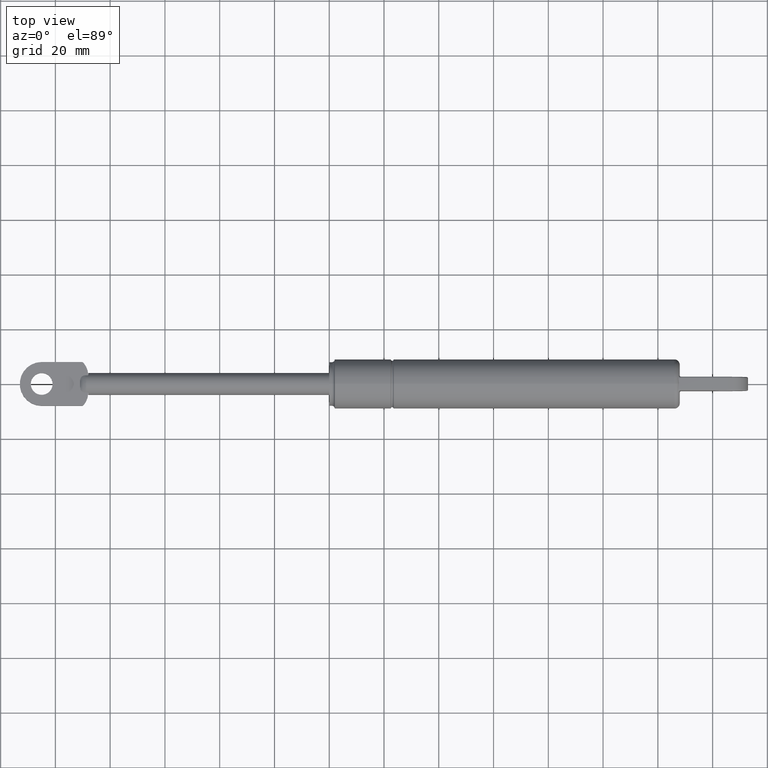
[diagram: clean part render]
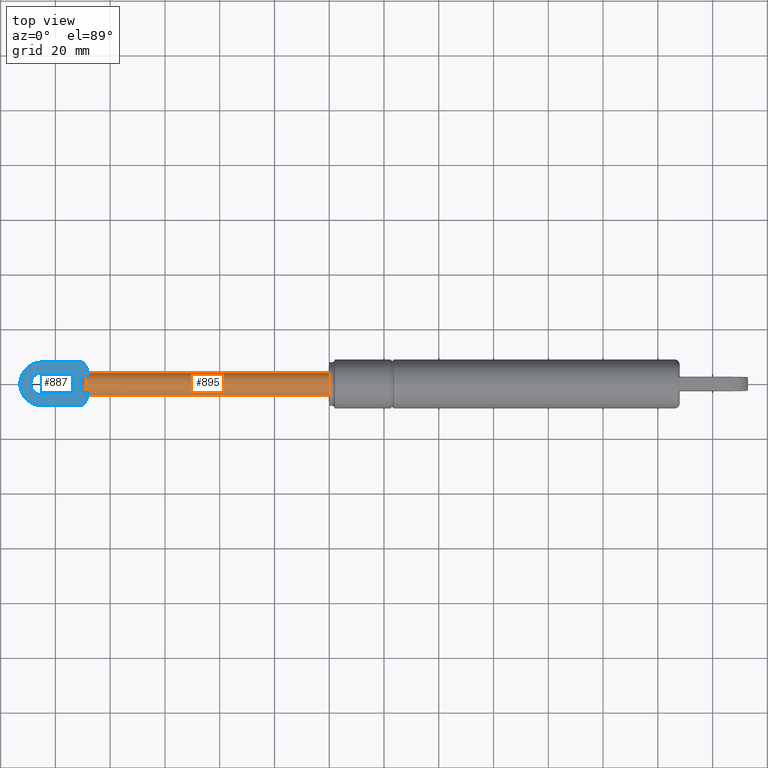
[diagram: same view with the hole feature highlighted: cylindrical wall and planar end face, labeled with their STEP entity ids]
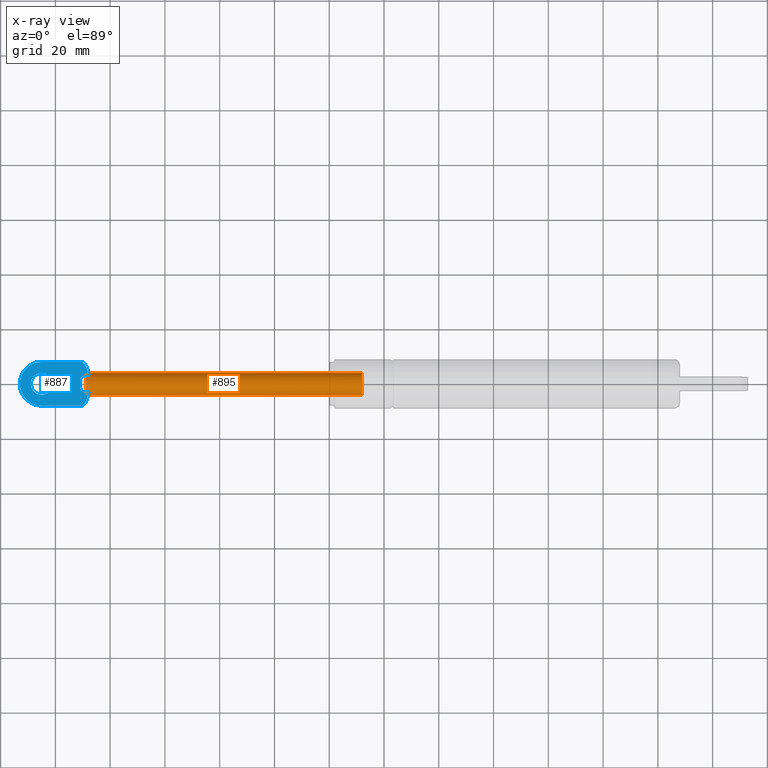
[diagram: x-ray of the same camera — body ghosted, the hole faces saturated]
A machine part, top view. The highlighted faces form one hole feature of diameter 8 mm: the cylindrical wall (entity #895, orange) and its adjacent planar end face (entity #887, blue) — they share a circular edge in the B-rep.
The next image is the same camera in x-ray (body ghosted, the hole faces saturated) — the bore reads through the body.
Wall:
#81=B_SPLINE_CURVE_WITH_KNOTS('',3,(#1987,#1988,#1989,#1990,#1991,#1992,
#1993,#1994,#1995),.UNSPECIFIED.,.F.,.F.,(4,1,1,1,1,1,4),(-0.139475648063101,
-0.104796829724592,-0.0522384912410686,0.000319847242455151,0.0528781857259789,
0.105436524209503,0.139788063217883),.UNSPECIFIED.);
#82=B_SPLINE_CURVE_WITH_KNOTS('',3,(#2101,#2102,#2103,#2104,#2105,#2106,
#2107,#2108,#2109),.UNSPECIFIED.,.F.,.F.,(4,1,1,1,1,1,4),(-0.139475648063101,
-0.104796813823138,-0.0522384721593241,0.000319869504489478,0.052878211168303,
0.105436552832117,0.139788063217883),.UNSPECIFIED.);
#102=LINE('',#1725,#135);
#104=LINE('',#1788,#137);
#112=LINE('',#1815,#145);
#114=LINE('',#1878,#147);
#135=VECTOR('',#1191,1.0484381254694);
#137=VECTOR('',#1193,1.04843812546748);
#145=VECTOR('',#1225,1.04843812546939);
#147=VECTOR('',#1227,1.04843812546748);
#190=CYLINDRICAL_SURFACE('',#1003,4.00000000000002);
#215=FACE_BOUND('',#358,.T.);
#274=FACE_OUTER_BOUND('',#357,.T.);
#357=EDGE_LOOP('',(#821,#822,#823,#824,#825,#826,#827,#828));
#358=EDGE_LOOP('',(#829));
#404=CIRCLE('',#986,4.00000000000003);
#406=CIRCLE('',#991,4.00000000000003);
#410=CIRCLE('',#997,4.);
#466=VERTEX_POINT('',#1708);
#467=VERTEX_POINT('',#1710);
#472=VERTEX_POINT('',#1722);
#473=VERTEX_POINT('',#1724);
#476=VERTEX_POINT('',#1761);
#482=VERTEX_POINT('',#1808);
#483=VERTEX_POINT('',#1814);
#486=VERTEX_POINT('',#1851);
#489=VERTEX_POINT('',#2113);
#575=EDGE_CURVE('',#472,#473,#102,.T.);
#579=EDGE_CURVE('',#476,#466,#104,.T.);
#586=EDGE_CURVE('',#466,#467,#404,.T.);
#591=EDGE_CURVE('',#482,#472,#406,.T.);
#592=EDGE_CURVE('',#467,#483,#112,.T.);
#596=EDGE_CURVE('',#486,#482,#114,.T.);
#599=EDGE_CURVE('',#473,#476,#81,.T.);
#600=EDGE_CURVE('',#483,#486,#82,.T.);
#602=EDGE_CURVE('',#489,#489,#410,.T.);
#821=ORIENTED_EDGE('',*,*,#599,.F.);
#822=ORIENTED_EDGE('',*,*,#575,.F.);
#823=ORIENTED_EDGE('',*,*,#591,.F.);
#824=ORIENTED_EDGE('',*,*,#596,.F.);
#825=ORIENTED_EDGE('',*,*,#600,.F.);
#826=ORIENTED_EDGE('',*,*,#592,.F.);
#827=ORIENTED_EDGE('',*,*,#586,.F.);
#828=ORIENTED_EDGE('',*,*,#579,.F.);
#829=ORIENTED_EDGE('',*,*,#602,.T.);
#895=ADVANCED_FACE('',(#274,#215),#190,.T.);
#986=AXIS2_PLACEMENT_3D('',#1802,#1208,#1209);
#991=AXIS2_PLACEMENT_3D('',#1812,#1221,#1222);
#997=AXIS2_PLACEMENT_3D('',#2114,#1236,#1237);
#1003=AXIS2_PLACEMENT_3D('',#2121,#1248,#1249);
#1191=DIRECTION('',(-1.,0.,0.));
#1193=DIRECTION('',(1.,0.,0.));
#1208=DIRECTION('center_axis',(-1.,0.,0.));
#1209=DIRECTION('ref_axis',(0.,0.,1.));
#1221=DIRECTION('center_axis',(-1.,0.,0.));
#1222=DIRECTION('ref_axis',(0.,0.,1.));
#1225=DIRECTION('',(-1.,0.,0.));
#1227=DIRECTION('',(1.,0.,0.));
#1236=DIRECTION('center_axis',(-1.,0.,0.));
#1237=DIRECTION('ref_axis',(0.,0.,1.));
#1248=DIRECTION('center_axis',(-1.,0.,0.));
#1249=DIRECTION('ref_axis',(0.,0.,1.));
#1708=CARTESIAN_POINT('',(0.,-2.5,3.12249899919922));
#1710=CARTESIAN_POINT('',(0.,2.5,3.12249899919922));
#1722=CARTESIAN_POINT('',(0.,-2.5,-3.12249899919922));
#1724=CARTESIAN_POINT('',(-1.0484381254694,-2.50000000005179,-3.12249899915775));
#1725=CARTESIAN_POINT('',(0.,-2.5,-3.12249899919924));
#1761=CARTESIAN_POINT('',(-1.04843812546748,-2.50000000005498,3.1224989991552));
#1788=CARTESIAN_POINT('',(0.,-2.5,3.12249899919924));
#1802=CARTESIAN_POINT('Origin',(0.,0.,0.));
#1808=CARTESIAN_POINT('',(0.,2.5,-3.12249899919922));
#1812=CARTESIAN_POINT('Origin',(0.,0.,0.));
#1814=CARTESIAN_POINT('',(-1.04843812546939,2.50000000005179,3.12249899915775));
#1815=CARTESIAN_POINT('',(0.,2.5,3.12249899919924));
#1851=CARTESIAN_POINT('',(-1.04843812546748,2.50000000005498,-3.1224989991552));
#1878=CARTESIAN_POINT('',(0.,2.5,-3.12249899919924));
#1987=CARTESIAN_POINT('Ctrl Pts',(-1.04812965509778,-2.50049673674388,-3.12174973000487));
#1988=CARTESIAN_POINT('Ctrl Pts',(-0.986572469579369,-2.70600329792911,
-2.95692486121546));
#1989=CARTESIAN_POINT('Ctrl Pts',(-0.853942497183192,-3.21109549053457,
-2.4694621497791));
#1990=CARTESIAN_POINT('Ctrl Pts',(-0.734261320793525,-3.83495796041769,
-1.40262205167441));
#1991=CARTESIAN_POINT('Ctrl Pts',(-0.69573723401195,-4.0843511327187,0.00933110933082206));
#1992=CARTESIAN_POINT('Ctrl Pts',(-0.735229995629765,-3.82866874475198,
1.4140150221425));
#1993=CARTESIAN_POINT('Ctrl Pts',(-0.854969303295989,-3.20882570977939,
2.47484666490815));
#1994=CARTESIAN_POINT('Ctrl Pts',(-0.987791053517738,-2.70217083159114,
2.95943731404797));
#1995=CARTESIAN_POINT('Ctrl Pts',(-1.04882123419063,-2.49803742135598,3.12259098692925));
#2101=CARTESIAN_POINT('Ctrl Pts',(-1.04812965504113,2.50049673584023,3.12174973189253));
#2102=CARTESIAN_POINT('Ctrl Pts',(-0.986572441372765,2.70600339113329,2.95692478743348));
#2103=CARTESIAN_POINT('Ctrl Pts',(-0.853942450725923,3.21109568955487,2.46946193421335));
#2104=CARTESIAN_POINT('Ctrl Pts',(-0.734261289331132,3.83495815081679,1.40262156476461));
#2105=CARTESIAN_POINT('Ctrl Pts',(-0.695737232531628,4.08435114224336,-0.00933172151341187));
#2106=CARTESIAN_POINT('Ctrl Pts',(-0.735230033518418,3.8286685124912,-1.41401567607785));
#2107=CARTESIAN_POINT('Ctrl Pts',(-0.854969372681583,3.20882540238422,-2.47484700804636));
#2108=CARTESIAN_POINT('Ctrl Pts',(-0.987791104117289,2.70217066627595,-2.95943744832251));
#2109=CARTESIAN_POINT('Ctrl Pts',(-1.04882123444335,2.49803742435252,-3.12259098432529));
#2113=CARTESIAN_POINT('',(100.,0.,4.));
#2114=CARTESIAN_POINT('Origin',(100.,0.,0.));
#2121=CARTESIAN_POINT('Origin',(50.,0.,0.));
End face:
#79=B_SPLINE_CURVE_WITH_KNOTS('',3,(#1817,#1818,#1819,#1820,#1821,#1822,
#1823,#1824,#1825,#1826,#1827,#1828,#1829,#1830,#1831,#1832,#1833,#1834,
#1835,#1836,#1837,#1838,#1839,#1840,#1841,#1842,#1843,#1844,#1845,#1846,
#1847,#1848),.UNSPECIFIED.,.F.,.F.,(4,2,2,2,2,2,2,2,2,2,2,2,2,2,2,4),(0.,
0.0855483950742681,0.163927180272514,0.235763626563087,0.281030865109191,
0.294706738593307,0.301522764161463,0.30225048277774,0.302478274298571,
0.302549697920648,0.302572264722704,0.302574962371186,0.302577102615921,
0.302578768124416,0.302580969485559,0.30258266185154),.UNSPECIFIED.);
#80=B_SPLINE_CURVE_WITH_KNOTS('',3,(#1852,#1853,#1854,#1855,#1856,#1857,
#1858,#1859,#1860,#1861,#1862,#1863,#1864,#1865,#1866,#1867,#1868,#1869,
#1870,#1871,#1872,#1873,#1874,#1875,#1876,#1877),.UNSPECIFIED.,.F.,.F.,
(4,2,2,2,2,2,2,2,2,2,2,2,4),(-4.62074359846267E-6,0.,3.07523892224636E-6,
1.63202764475892E-5,5.82225299908207E-5,0.000191804928956173,0.000620257719340102,
0.00473747735559266,0.0129916557821054,0.0402080286653331,0.0834261130779795,
0.130593624266423,0.182078702803651),.UNSPECIFIED.);
#108=LINE('',#1800,#141);
#109=LINE('',#1805,#142);
#112=LINE('',#1815,#145);
#113=LINE('',#1850,#146);
#114=LINE('',#1878,#147);
#141=VECTOR('',#1205,14.5622398760994);
#142=VECTOR('',#1212,14.5622398760994);
#145=VECTOR('',#1225,1.04843812546939);
#146=VECTOR('',#1226,3.00000000000003);
#147=VECTOR('',#1227,1.04843812546748);
#165=PLANE('',#992);
#211=FACE_BOUND('',#346,.T.);
#266=FACE_OUTER_BOUND('',#345,.T.);
#345=EDGE_LOOP('',(#789,#790,#791,#792,#793,#794,#795,#796,#797,#798,#799,
#800));
#346=EDGE_LOOP('',(#801));
#395=CIRCLE('',#972,1.);
#398=CIRCLE('',#976,6.94750400320317);
#403=CIRCLE('',#983,1.);
#405=CIRCLE('',#989,6.94750400320317);
#407=CIRCLE('',#993,8.);
#408=CIRCLE('',#994,4.);
#462=VERTEX_POINT('',#1699);
#463=VERTEX_POINT('',#1700);
#467=VERTEX_POINT('',#1710);
#478=VERTEX_POINT('',#1792);
#479=VERTEX_POINT('',#1794);
#480=VERTEX_POINT('',#1798);
#481=VERTEX_POINT('',#1804);
#482=VERTEX_POINT('',#1808);
#483=VERTEX_POINT('',#1814);
#484=VERTEX_POINT('',#1816);
#485=VERTEX_POINT('',#1849);
#486=VERTEX_POINT('',#1851);
#487=VERTEX_POINT('',#1880);
#563=EDGE_CURVE('',#462,#463,#395,.T.);
#569=EDGE_CURVE('',#462,#467,#398,.T.);
#582=EDGE_CURVE('',#478,#479,#403,.T.);
#585=EDGE_CURVE('',#478,#480,#108,.T.);
#587=EDGE_CURVE('',#481,#463,#109,.T.);
#589=EDGE_CURVE('',#482,#479,#405,.T.);
#592=EDGE_CURVE('',#467,#483,#112,.T.);
#593=EDGE_CURVE('',#483,#484,#79,.T.);
#594=EDGE_CURVE('',#484,#485,#113,.T.);
#595=EDGE_CURVE('',#486,#485,#80,.F.);
#596=EDGE_CURVE('',#486,#482,#114,.T.);
#597=EDGE_CURVE('',#480,#481,#407,.T.);
#598=EDGE_CURVE('',#487,#487,#408,.T.);
#789=ORIENTED_EDGE('',*,*,#563,.F.);
#790=ORIENTED_EDGE('',*,*,#569,.T.);
#791=ORIENTED_EDGE('',*,*,#592,.T.);
#792=ORIENTED_EDGE('',*,*,#593,.T.);
#793=ORIENTED_EDGE('',*,*,#594,.T.);
#794=ORIENTED_EDGE('',*,*,#595,.F.);
#795=ORIENTED_EDGE('',*,*,#596,.T.);
#796=ORIENTED_EDGE('',*,*,#589,.T.);
#797=ORIENTED_EDGE('',*,*,#582,.F.);
#798=ORIENTED_EDGE('',*,*,#585,.T.);
#799=ORIENTED_EDGE('',*,*,#597,.T.);
#800=ORIENTED_EDGE('',*,*,#587,.T.);
#801=ORIENTED_EDGE('',*,*,#598,.T.);
#887=ADVANCED_FACE('',(#266,#211),#165,.T.);
#972=AXIS2_PLACEMENT_3D('',#1701,#1168,#1169);
#976=AXIS2_PLACEMENT_3D('',#1712,#1179,#1180);
#983=AXIS2_PLACEMENT_3D('',#1795,#1199,#1200);
#989=AXIS2_PLACEMENT_3D('',#1809,#1216,#1217);
#992=AXIS2_PLACEMENT_3D('',#1813,#1223,#1224);
#993=AXIS2_PLACEMENT_3D('',#1879,#1228,#1229);
#994=AXIS2_PLACEMENT_3D('',#1881,#1230,#1231);
#1168=DIRECTION('center_axis',(0.,-1.,0.));
#1169=DIRECTION('ref_axis',(0.417160441423437,0.,0.908832859282389));
#1179=DIRECTION('center_axis',(0.,1.,0.));
#1180=DIRECTION('ref_axis',(-1.,0.,0.));
#1199=DIRECTION('center_axis',(0.,-1.,0.));
#1200=DIRECTION('ref_axis',(0.417160441423437,0.,-0.908832859282389));
#1205=DIRECTION('',(-1.,0.,1.30614473485313E-16));
#1212=DIRECTION('',(1.,0.,1.30614473485313E-16));
#1216=DIRECTION('center_axis',(0.,1.,0.));
#1217=DIRECTION('ref_axis',(-1.,0.,0.));
#1223=DIRECTION('center_axis',(0.,1.,0.));
#1224=DIRECTION('ref_axis',(0.,0.,1.));
#1225=DIRECTION('',(-1.,0.,0.));
#1226=DIRECTION('',(0.,0.,-1.));
#1227=DIRECTION('',(1.,0.,0.));
#1228=DIRECTION('center_axis',(0.,1.,0.));
#1229=DIRECTION('ref_axis',(0.,0.,1.));
#1230=DIRECTION('center_axis',(0.,-1.,0.));
#1231=DIRECTION('ref_axis',(1.,0.,0.));
#1699=CARTESIAN_POINT('',(-1.67950189038391,2.5,7.65195433222281));
#1700=CARTESIAN_POINT('',(-2.43776012390064,2.5,8.00000000000001));
#1701=CARTESIAN_POINT('Origin',(-2.43776012390064,2.5,7.));
#1710=CARTESIAN_POINT('',(0.,2.5,3.12249899919922));
#1712=CARTESIAN_POINT('Origin',(-6.94750400320317,2.5,3.12249899919922));
#1792=CARTESIAN_POINT('',(-2.43776012390064,2.5,-8.00000000000001));
#1794=CARTESIAN_POINT('',(-1.67950189038391,2.5,-7.65195433222281));
#1795=CARTESIAN_POINT('Origin',(-2.43776012390064,2.5,-7.));
#1798=CARTESIAN_POINT('',(-17.,2.5,-8.));
#1800=CARTESIAN_POINT('',(-17.,2.5,-8.));
#1804=CARTESIAN_POINT('',(-17.,2.5,8.));
#1805=CARTESIAN_POINT('',(0.,2.5,8.00000000000001));
#1808=CARTESIAN_POINT('',(0.,2.5,-3.12249899919922));
#1809=CARTESIAN_POINT('Origin',(-6.94750400320317,2.5,-3.12249899919922));
#1813=CARTESIAN_POINT('Origin',(-10.2461445222946,2.5,-2.41880214715627E-16));
#1814=CARTESIAN_POINT('',(-1.04843812546939,2.50000000005179,3.12249899915775));
#1815=CARTESIAN_POINT('',(0.,2.5,3.12249899919924));
#1816=CARTESIAN_POINT('',(-3.,2.5,1.50000000000002));
#1817=CARTESIAN_POINT('Ctrl Pts',(-1.04843812550049,2.5,3.12249899919922));
#1818=CARTESIAN_POINT('Ctrl Pts',(-1.33359944241472,2.5,3.12249899919922));
#1819=CARTESIAN_POINT('Ctrl Pts',(-1.61609693156533,2.5,3.06798324597577));
#1820=CARTESIAN_POINT('Ctrl Pts',(-2.1191644649844,2.5,2.85752984068891));
#1821=CARTESIAN_POINT('Ctrl Pts',(-2.33876258848346,2.49999999989011,2.71208321724016));
#1822=CARTESIAN_POINT('Ctrl Pts',(-2.68887409333563,2.49999999989011,2.35751694727));
#1823=CARTESIAN_POINT('Ctrl Pts',(-2.81272752499992,2.5,2.16743663854976));
#1824=CARTESIAN_POINT('Ctrl Pts',(-2.94385815866261,2.5,1.85179546617434));
#1825=CARTESIAN_POINT('Ctrl Pts',(-2.97313664109467,2.5,1.73850303508843));
#1826=CARTESIAN_POINT('Ctrl Pts',(-2.99249643436755,2.5,1.6107113531617));
#1827=CARTESIAN_POINT('Ctrl Pts',(-2.99594759847657,2.49999999999989,1.58055765388586));
#1828=CARTESIAN_POINT('Ctrl Pts',(-2.99902751617948,2.49999999999989,1.53601136917563));
#1829=CARTESIAN_POINT('Ctrl Pts',(-2.99973426103065,2.5,1.52084037824915));
#1830=CARTESIAN_POINT('Ctrl Pts',(-2.9999666438202,2.5,1.50510258140045));
#1831=CARTESIAN_POINT('Ctrl Pts',(-2.99998359680608,2.5,1.50356088590885));
#1832=CARTESIAN_POINT('Ctrl Pts',(-2.99999569322333,2.5,1.50158565675152));
#1833=CARTESIAN_POINT('Ctrl Pts',(-2.99999787697158,2.5,1.50110745376396));
#1834=CARTESIAN_POINT('Ctrl Pts',(-2.99999943972268,2.5,1.50049456427492));
#1835=CARTESIAN_POINT('Ctrl Pts',(-2.99999972259055,2.5,1.50034600076372));
#1836=CARTESIAN_POINT('Ctrl Pts',(-2.99999992629625,2.5,1.50015521219556));
#1837=CARTESIAN_POINT('Ctrl Pts',(-2.9999999634126,2.5,1.50010869668203));
#1838=CARTESIAN_POINT('Ctrl Pts',(-2.99999998621171,2.5,1.50005787110005));
#1839=CARTESIAN_POINT('Ctrl Pts',(-2.99999998841499,2.5,1.50005243567806));
#1840=CARTESIAN_POINT('Ctrl Pts',(-2.9999999919068,2.5,1.50004270465701));
#1841=CARTESIAN_POINT('Ctrl Pts',(-2.99999999329515,2.5,1.50003839191155));
#1842=CARTESIAN_POINT('Ctrl Pts',(-2.99999999545302,2.5,1.5000307384007));
#1843=CARTESIAN_POINT('Ctrl Pts',(-2.99999999629495,2.5,1.50002738187415));
#1844=CARTESIAN_POINT('Ctrl Pts',(-2.99999999798136,2.5,1.5000196073382));
#1845=CARTESIAN_POINT('Ctrl Pts',(-2.99999999875125,2.5,1.50001514089379));
#1846=CARTESIAN_POINT('Ctrl Pts',(-2.99999999967562,2.5,1.50000733698404));
#1847=CARTESIAN_POINT('Ctrl Pts',(-3.,2.5,1.5000033918842));
#1848=CARTESIAN_POINT('Ctrl Pts',(-3.,2.5,1.50000000000002));
#1849=CARTESIAN_POINT('',(-3.,2.5,-1.50000000000002));
#1850=CARTESIAN_POINT('',(-3.,2.5,-2.33434941515464E-16));
#1851=CARTESIAN_POINT('',(-1.04843812546748,2.50000000005498,-3.1224989991552));
#1852=CARTESIAN_POINT('Ctrl Pts',(-3.,2.5,-1.50000000000002));
#1853=CARTESIAN_POINT('Ctrl Pts',(-3.,2.5,-1.49998459752135));
#1854=CARTESIAN_POINT('Ctrl Pts',(-2.99999999942548,2.5,-1.50001540247886));
#1855=CARTESIAN_POINT('Ctrl Pts',(-2.99999999272182,2.5,-1.50004105575305));
#1856=CARTESIAN_POINT('Ctrl Pts',(-2.999999989018,2.5,-1.50005140081672));
#1857=CARTESIAN_POINT('Ctrl Pts',(-2.99999996503809,2.5,-1.5001059125737));
#1858=CARTESIAN_POINT('Ctrl Pts',(-2.99999992956557,2.5,-1.50015124130056));
#1859=CARTESIAN_POINT('Ctrl Pts',(-2.99999973494377,2.5,-1.50033710043434));
#1860=CARTESIAN_POINT('Ctrl Pts',(-2.9999994647647,2.5,-1.5004818091623));
#1861=CARTESIAN_POINT('Ctrl Pts',(-2.99999797266019,2.5,-1.50107860568887));
#1862=CARTESIAN_POINT('Ctrl Pts',(-2.99999588836585,2.5,-1.50154419947282));
#1863=CARTESIAN_POINT('Ctrl Pts',(-2.99998430855404,2.5,-1.50347319366071));
#1864=CARTESIAN_POINT('Ctrl Pts',(-2.99996803658554,2.5,-1.5049803952351));
#1865=CARTESIAN_POINT('Ctrl Pts',(-2.99973968070398,2.5,-1.52072632221192));
#1866=CARTESIAN_POINT('Ctrl Pts',(-2.99903112502131,2.49999999999991,-1.53596272809063));
#1867=CARTESIAN_POINT('Ctrl Pts',(-2.99593873355977,2.49999999999991,-1.58067873799725));
#1868=CARTESIAN_POINT('Ctrl Pts',(-2.99247005897483,2.5,-1.61094072508271));
#1869=CARTESIAN_POINT('Ctrl Pts',(-2.97306300128505,2.5,-1.73880553674369));
#1870=CARTESIAN_POINT('Ctrl Pts',(-2.94377710013318,2.5,-1.85201681746668));
#1871=CARTESIAN_POINT('Ctrl Pts',(-2.81268536576208,2.5,-2.16749642434415));
#1872=CARTESIAN_POINT('Ctrl Pts',(-2.68885948349303,2.49999999987114,-2.35752205497776));
#1873=CARTESIAN_POINT('Ctrl Pts',(-2.33880492322555,2.49999999987114,-2.71205091498645));
#1874=CARTESIAN_POINT('Ctrl Pts',(-2.11920997358092,2.5,-2.8575037692492));
#1875=CARTESIAN_POINT('Ctrl Pts',(-1.61613114340378,2.5,-3.06797660951165));
#1876=CARTESIAN_POINT('Ctrl Pts',(-1.33361679891395,2.5,-3.12249899919922));
#1877=CARTESIAN_POINT('Ctrl Pts',(-1.04843812550049,2.5,-3.12249899919922));
#1878=CARTESIAN_POINT('',(0.,2.5,-3.12249899919924));
#1879=CARTESIAN_POINT('Origin',(-17.,2.5,-3.33066907387547E-15));
#1880=CARTESIAN_POINT('',(-21.,2.5,-2.84081035421653E-15));
#1881=CARTESIAN_POINT('Origin',(-17.,2.5,-3.33066907387547E-15));